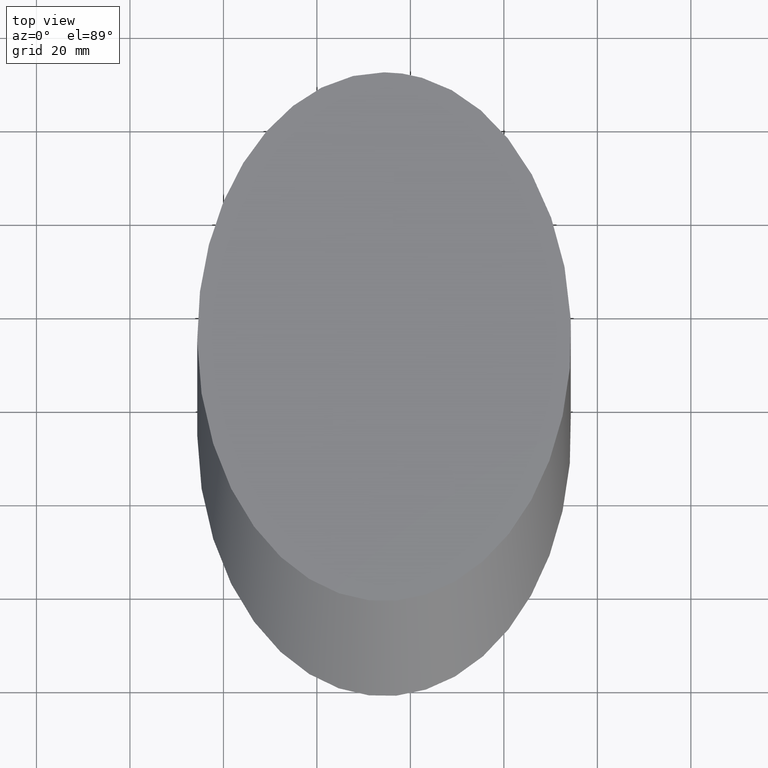
[diagram: clean part render]
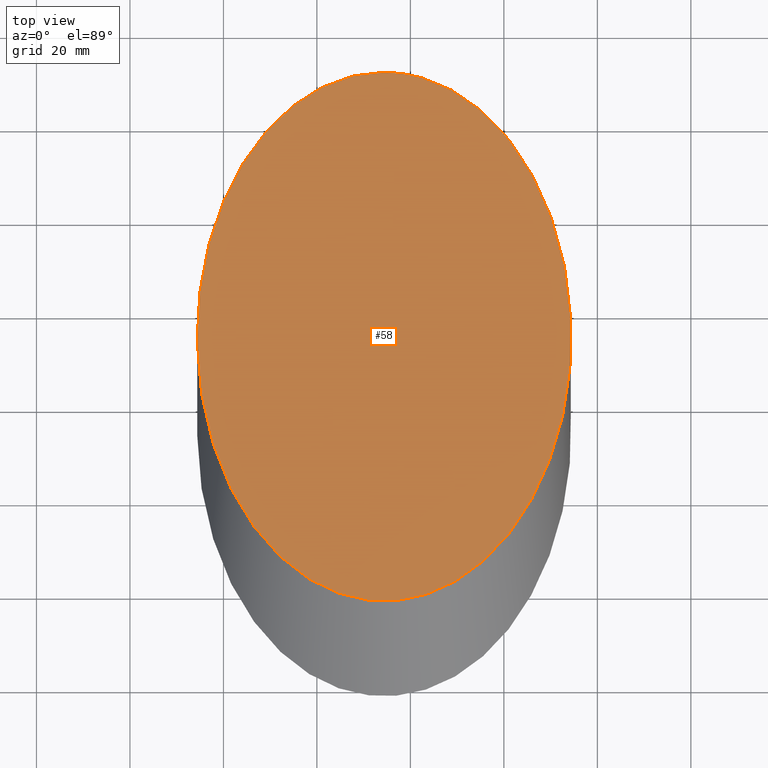
[diagram: same view with one face highlighted and labeled with its STEP entity id]
A machine part, top view. The second image highlights one B-rep face of the part: STEP entity #58.
In plain terms, the highlighted planar face has unit normal (0, 0, 1).
Its self-contained STEP definition (entity closure, byte-faithful):
#5 = CARTESIAN_POINT ( 'NONE',  ( 134.3923829817160254, -20.78612846967790873, 0.000000000000000000 ) ) ;
#7 = FACE_OUTER_BOUND ( 'NONE', #37, .T. ) ;
#9 = CARTESIAN_POINT ( 'NONE',  ( 54.39238298171605379, 92.36387153032210051, 0.000000000000000000 ) ) ;
#18 = VERTEX_POINT ( 'NONE', #9 ) ;
#37 = EDGE_LOOP ( 'NONE', ( #135 ) ) ;
#41 = DIRECTION ( 'NONE',  ( 1.000000000000000000, 0.000000000000000000, -0.000000000000000000 ) ) ;
#42 = CARTESIAN_POINT ( 'NONE',  ( -25.60761701828394266, -20.78612846967788030, 0.000000000000000000 ) ) ;
#58 = ADVANCED_FACE ( 'NONE', ( #7 ), #101, .T. ) ;
#66 = CARTESIAN_POINT ( 'NONE',  ( 54.39238298171604669, -20.78612846967789451, 0.000000000000000000 ) ) ;
#68 = CARTESIAN_POINT ( 'NONE',  ( 54.39238298171605379, 92.36387153032210051, 0.000000000000000000 ) ) ;
#81 = CARTESIAN_POINT ( 'NONE',  ( 54.39238298171605379, 35.78887153032210477, 0.000000000000000000 ) ) ;
#91 = CARTESIAN_POINT ( 'NONE',  ( 54.39238298171605379, 92.36387153032210051, 0.000000000000000000 ) ) ;
#100 = EDGE_CURVE ( 'NONE', #18, #18, #105, .T. ) ;
#101 = PLANE ( 'NONE',  #112 ) ;
#102 = CARTESIAN_POINT ( 'NONE',  ( 134.3923829817160538, 92.36387153032210051, 0.000000000000000000 ) ) ;
#105 =( BOUNDED_CURVE ( )  B_SPLINE_CURVE ( 3, ( #68, #146, #42, #66, #5, #102, #91 ),
 .UNSPECIFIED., .T., .F. ) 
 B_SPLINE_CURVE_WITH_KNOTS ( ( 4, 3, 4 ),
 ( 0.000000000000000000, 3.141592653589793116, 6.283185307179586232 ),
 .UNSPECIFIED. ) 
 CURVE ( )  GEOMETRIC_REPRESENTATION_ITEM ( )  RATIONAL_B_SPLINE_CURVE ( ( 1.000000000000000000, 0.3333333333333333703, 0.3333333333333333703, 1.000000000000000000, 0.3333333333333333703, 0.3333333333333333703, 1.000000000000000000 ) ) 
 REPRESENTATION_ITEM ( '' )  );
#112 = AXIS2_PLACEMENT_3D ( 'NONE', #81, #114, #41 ) ;
#114 = DIRECTION ( 'NONE',  ( 0.000000000000000000, 0.000000000000000000, 1.000000000000000000 ) ) ;
#135 = ORIENTED_EDGE ( 'NONE', *, *, #100, .T. ) ;
#146 = CARTESIAN_POINT ( 'NONE',  ( -25.60761701828393910, 92.36387153032210051, 0.000000000000000000 ) ) ;